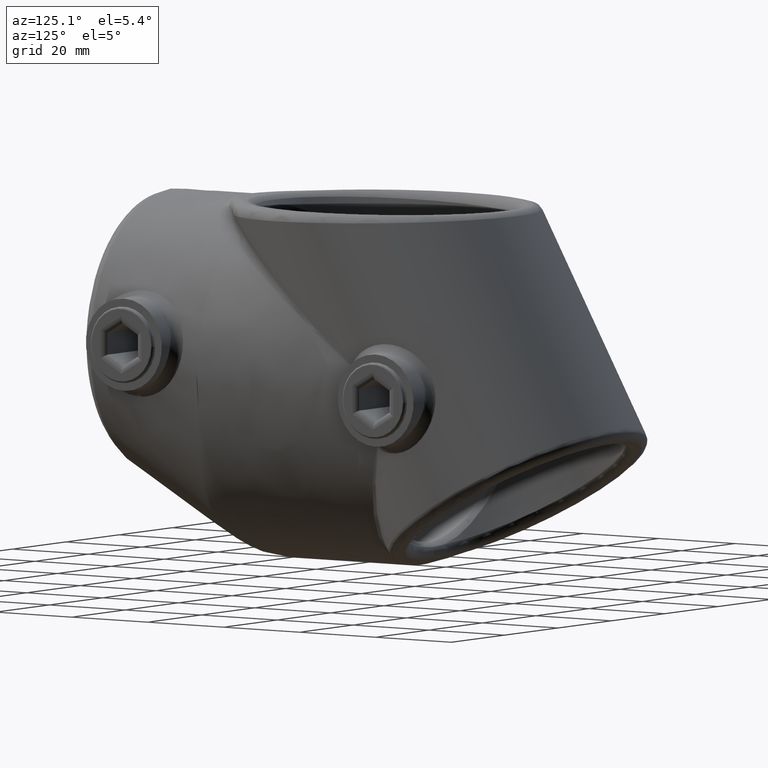
[diagram: clean part render]
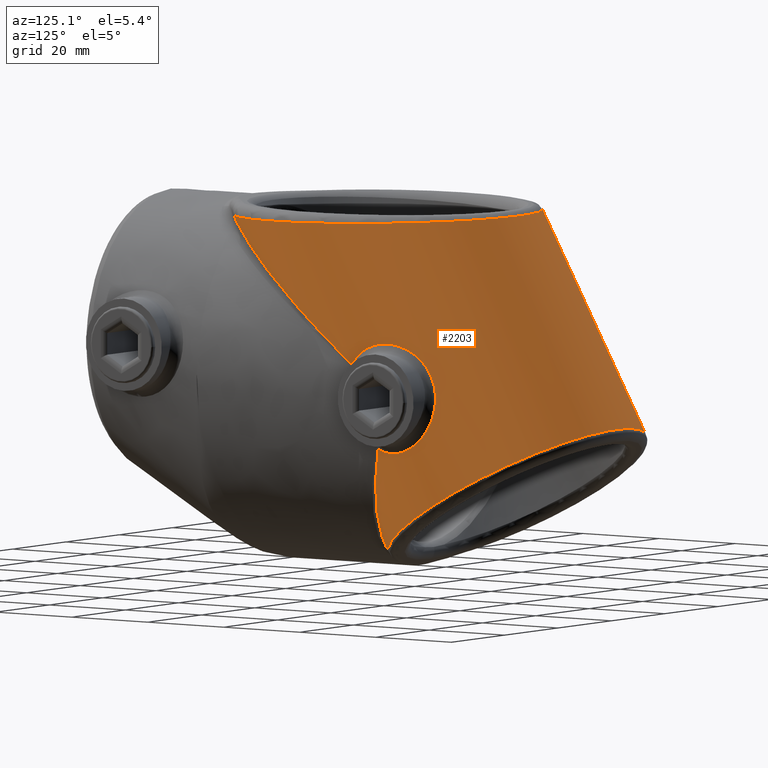
[diagram: same view with one face highlighted and labeled with its STEP entity id]
A machine part, auxiliary view. The second image highlights one B-rep face of the part: STEP entity #2203.
In plain terms, the highlighted cylindrical surface (partial cylindrical patch) has radius 30.5 mm, axis along (0, 0.5, -0.866).
Its self-contained STEP definition (entity closure, byte-faithful):
#7 = CARTESIAN_POINT ( 'NONE',  ( 18.44501776718502839, 32.91123728144165028, -5.520450272619874532 ) ) ;
#36 = CARTESIAN_POINT ( 'NONE',  ( -30.49999999999999645, 80.29829407782803230, -38.99999999999991473 ) ) ;
#47 = CARTESIAN_POINT ( 'NONE',  ( 30.44937329979589080, 75.96220431875330803, -27.81645599000276547 ) ) ;
#65 = CARTESIAN_POINT ( 'NONE',  ( -30.35150135555418416, 74.42045258168052158, -35.02951915703669528 ) ) ;
#152 = CARTESIAN_POINT ( 'NONE',  ( 28.36316154612272555, 90.61755760880986088, -34.44297344836920871 ) ) ;
#204 = CARTESIAN_POINT ( 'NONE',  ( 28.38834355044728497, 90.83418881274684509, -34.94510011564966590 ) ) ;
#236 = CARTESIAN_POINT ( 'NONE',  ( 30.28652875732203142, 89.13456637138995120, -47.02787276468654198 ) ) ;
#268 = CARTESIAN_POINT ( 'NONE',  ( 30.05519595197144156, 81.12434969222853454, -50.82119675898818656 ) ) ;
#350 = CARTESIAN_POINT ( 'NONE',  ( -17.35797571787684390, 70.33791826671986769, -71.91204675596125639 ) ) ;
#403 = CARTESIAN_POINT ( 'NONE',  ( 29.30642770102828010, 76.94835297041278466, -50.09545891354591163 ) ) ;
#445 = DIRECTION ( 'NONE',  ( 0.000000000000000000, 0.4999999999999949485, -0.8660254037844417052 ) ) ;
#476 = CARTESIAN_POINT ( 'NONE',  ( -28.78270576776624168, 76.26342488126442731, -52.36265940299310984 ) ) ;
#593 = ORIENTED_EDGE ( 'NONE', *, *, #1672, .F. ) ;
#598 = CARTESIAN_POINT ( 'NONE',  ( -29.68345301097895117, 77.50695399845572808, -48.24609858473048973 ) ) ;
#619 = CARTESIAN_POINT ( 'NONE',  ( -38.33271639267046993, 93.66956623462287723, -0.9973379543766888178 ) ) ;
#724 = CARTESIAN_POINT ( 'NONE',  ( 27.30618325833111726, 53.72964626366505314, -20.22254397919866520 ) ) ;
#760 = CARTESIAN_POINT ( 'NONE',  ( 30.33956844291328991, 77.24860475621959210, -27.44799046401220011 ) ) ;
#776 = EDGE_CURVE ( 'NONE', #3348, #6041, #4044, .T. ) ;
#833 = CARTESIAN_POINT ( 'NONE',  ( 0.000000000000000000, 93.01036297108150563, -61.01794919243113924 ) ) ;
#845 = CARTESIAN_POINT ( 'NONE',  ( 30.09323688456483126, 70.61333642481109507, -32.15432917841368976 ) ) ;
#860 = CARTESIAN_POINT ( 'NONE',  ( -30.46289620152457189, 77.35787832099934747, -37.01374970038066436 ) ) ;
#871 = CARTESIAN_POINT ( 'NONE',  ( 28.54021840678842281, 87.82131333787258143, -30.51379379222492716 ) ) ;
#897 = CARTESIAN_POINT ( 'NONE',  ( 29.97171781392411205, 80.58919490804505870, -50.81777132038101286 ) ) ;
#931 = CARTESIAN_POINT ( 'NONE',  ( 28.50107171371284664, 91.37873692949222004, -36.46799536167620204 ) ) ;
#991 = CARTESIAN_POINT ( 'NONE',  ( 28.34283345713108915, 89.85534098387887525, -33.02015240194587875 ) ) ;
#992 = EDGE_CURVE ( 'NONE', #3671, #1412, #9110, .T. ) ;
#1006 = AXIS2_PLACEMENT_3D ( 'NONE', #833, #1598, #2194 ) ;
#1069 = CARTESIAN_POINT ( 'NONE',  ( 17.86147621835334931, 70.47859743322435122, -71.44996175860433141 ) ) ;
#1078 = CARTESIAN_POINT ( 'NONE',  ( -20.38002325117111724, 71.27168710833788623, -68.84268208466407657 ) ) ;
#1175 = CARTESIAN_POINT ( 'NONE',  ( -20.12958676252430124, 35.80641273819524883, -7.776991746345832901 ) ) ;
#1188 = ORIENTED_EDGE ( 'NONE', *, *, #4663, .T. ) ;
#1197 = CARTESIAN_POINT ( 'NONE',  ( 18.75228484288420461, 70.74501861753161336, -70.57441860572518522 ) ) ;
#1265 = CARTESIAN_POINT ( 'NONE',  ( -26.21999983534173140, 74.11200527825812401, -59.47617310124038426 ) ) ;
#1289 = VERTEX_POINT ( 'NONE', #2967 ) ;
#1311 = CARTESIAN_POINT ( 'NONE',  ( -25.46712634632379846, 48.33713359090894812, -17.41024200543920486 ) ) ;
#1316 = CARTESIAN_POINT ( 'NONE',  ( -15.68382990263948784, 29.22626009812640646, -2.857655961650975129 ) ) ;
#1331 = CARTESIAN_POINT ( 'NONE',  ( -30.49872829845923050, 80.17077017296398367, -39.42248861245595037 ) ) ;
#1376 = CARTESIAN_POINT ( 'NONE',  ( 17.38736970977256391, 31.43046698510136494, -4.475478623989165960 ) ) ;
#1388 = CARTESIAN_POINT ( 'NONE',  ( 26.86529976190579205, 52.06718935760292055, -19.04796247303830015 ) ) ;
#1412 = VERTEX_POINT ( 'NONE', #7890 ) ;
#1482 = CARTESIAN_POINT ( 'NONE',  ( -30.49999999999999645, 79.56421410354572288, -38.50412911332108479 ) ) ;
#1515 = CARTESIAN_POINT ( 'NONE',  ( -30.26231343452380429, 72.95312297281871849, -34.03833827777643961 ) ) ;
#1545 = CARTESIAN_POINT ( 'NONE',  ( -30.44063504954216981, 76.62329110273878996, -36.51753617038097133 ) ) ;
#1555 = CARTESIAN_POINT ( 'NONE',  ( -24.35663476088555157, 45.54809617706074931, -15.52624774849091516 ) ) ;
#1598 = DIRECTION ( 'NONE',  ( 0.000000000000000000, -0.4999999999999999445, 0.8660254037844387076 ) ) ;
#1612 = CARTESIAN_POINT ( 'NONE',  ( 29.52600718785646450, 91.33772338493795928, -42.80684002581733694 ) ) ;
#1671 = CARTESIAN_POINT ( 'NONE',  ( 29.47214493404342406, 82.79931932904462144, -27.61255559974079077 ) ) ;
#1672 = EDGE_CURVE ( 'NONE', #3348, #1412, #7423, .T. ) ;
#1701 = CARTESIAN_POINT ( 'NONE',  ( 29.94580401127025837, 90.46186620999989714, -45.01950362783234993 ) ) ;
#1736 = CARTESIAN_POINT ( 'NONE',  ( 29.13215729479256311, 91.74969480579304104, -40.71527587087046385 ) ) ;
#1780 = CYLINDRICAL_SURFACE ( 'NONE', #9118, 30.50000000000000355 ) ;
#1796 = EDGE_CURVE ( 'NONE', #9166, #3671, #1890, .T. ) ;
#1804 = CARTESIAN_POINT ( 'NONE',  ( 17.39960012116047849, 70.34808754264753361, -71.87867596729040542 ) ) ;
#1812 = CARTESIAN_POINT ( 'NONE',  ( -17.67002634304123276, 31.77757793497867311, -4.726027649545121889 ) ) ;
#1838 = ORIENTED_EDGE ( 'NONE', *, *, #3448, .T. ) ;
#1846 = CARTESIAN_POINT ( 'NONE',  ( -25.86337808222719303, 73.87956597968209849, -60.24393097526907326 ) ) ;
#1855 = CARTESIAN_POINT ( 'NONE',  ( 13.96015541855962638, 69.52583518112130889, -74.57674763374765803 ) ) ;
#1869 = CARTESIAN_POINT ( 'NONE',  ( 26.76435440818125500, 74.48425429532015585, -58.24633968835950526 ) ) ;
#1890 = CIRCLE ( 'NONE', #1006, 30.50000000000000355 ) ;
#1916 = CARTESIAN_POINT ( 'NONE',  ( -19.35506942537865172, 34.44666004290193229, -6.737254138440141205 ) ) ;
#2017 = CARTESIAN_POINT ( 'NONE',  ( -30.49363435484371720, 80.04316863593908238, -39.84523333752272833 ) ) ;
#2064 = CARTESIAN_POINT ( 'NONE',  ( 15.57297064652125052, 29.15112972464211438, -2.859824788713234422 ) ) ;
#2194 = DIRECTION ( 'NONE',  ( 0.000000000000000000, -0.8660254037844385966, -0.4999999999999999445 ) ) ;
#2203 = ADVANCED_FACE ( 'NONE', ( #8113 ), #1780, .T. ) ;
#2239 = CARTESIAN_POINT ( 'NONE',  ( 30.31208047141105411, 77.51072113616112347, -27.39165121002950087 ) ) ;
#2323 = CARTESIAN_POINT ( 'NONE',  ( -28.52656788089715789, 59.80821397883641311, -25.15895468478221275 ) ) ;
#2337 = CARTESIAN_POINT ( 'NONE',  ( 30.42297891686403943, 72.52043502000009312, -29.89279806351966329 ) ) ;
#2362 = CARTESIAN_POINT ( 'NONE',  ( 30.50044371640136021, 86.48318662641833043, -49.28703573285194750 ) ) ;
#2390 = CARTESIAN_POINT ( 'NONE',  ( 28.74088606960821224, 86.59729661167303050, -29.48731181206745333 ) ) ;
#2415 = ORIENTED_EDGE ( 'NONE', *, *, #8711, .T. ) ;
#2417 = CARTESIAN_POINT ( 'NONE',  ( 29.98865679546280916, 90.33667662634337603, -45.25400101452830626 ) ) ;
#2451 = CARTESIAN_POINT ( 'NONE',  ( 30.48401572788551661, 87.16178965940852663, -48.84042653887541974 ) ) ;
#2478 = CARTESIAN_POINT ( 'NONE',  ( 30.42582677312302053, 84.29274656171540414, -50.30139804965060080 ) ) ;
#2498 = CARTESIAN_POINT ( 'NONE',  ( 29.30642770102828010, 76.94835297041278466, -50.09545891354591163 ) ) ;
#2527 = CARTESIAN_POINT ( 'NONE',  ( -15.36778974220624328, 69.82929699758260256, -73.58169082627144064 ) ) ;
#2553 = CARTESIAN_POINT ( 'NONE',  ( -16.73437100423792501, 30.47818541083012889, -3.766310445330428358 ) ) ;
#2584 = CARTESIAN_POINT ( 'NONE',  ( -19.24279805591194759, 70.88308611544971427, -70.12088760762082984 ) ) ;
#2597 =( BOUNDED_CURVE ( )  B_SPLINE_CURVE ( 3, ( #1316, #6340, #619, #7874, #2691, #3456, #2064 ),
 .UNSPECIFIED., .F., .T. ) 
 B_SPLINE_CURVE_WITH_KNOTS ( ( 4, 3, 4 ),
 ( 3.681695185236678824, 6.285301618690904313, 8.888908052145129801 ),
 .UNSPECIFIED. ) 
 CURVE ( )  GEOMETRIC_REPRESENTATION_ITEM ( )  RATIONAL_B_SPLINE_CURVE ( ( 1.000000000000000000, 0.5105072602869930032, 0.5105072602869930032, 1.000000000000000000, 0.5105072602869930032, 0.5105072602869930032, 1.000000000000000000 ) ) 
 REPRESENTATION_ITEM ( '' )  );
#2600 = CARTESIAN_POINT ( 'NONE',  ( 22.71758005338712394, 72.18097757299673844, -65.84881721183683112 ) ) ;
#2643 = CARTESIAN_POINT ( 'NONE',  ( -21.55264877279102365, 38.56051996048856978, -9.912676889921330670 ) ) ;
#2691 = CARTESIAN_POINT ( 'NONE',  ( 38.46181129849631475, 93.48497915451751794, -1.002666524396076619 ) ) ;
#2756 = CARTESIAN_POINT ( 'NONE',  ( 25.88246977969324192, 48.76742000996082282, -16.71678926424047518 ) ) ;
#2827 = CARTESIAN_POINT ( 'NONE',  ( 21.22715452843879902, 37.52061458488518753, -8.774042677501396881 ) ) ;
#2932 = CARTESIAN_POINT ( 'NONE',  ( 30.40301422667542752, 72.32264374670988616, -30.07466169681347523 ) ) ;
#2967 = CARTESIAN_POINT ( 'NONE',  ( 17.38736970977256391, 31.43046698510136494, -4.475478623989165960 ) ) ;
#3037 = CARTESIAN_POINT ( 'NONE',  ( -27.54908165488601313, 55.47092786665990616, -22.22911871861393607 ) ) ;
#3070 = CARTESIAN_POINT ( 'NONE',  ( 30.27319961671228654, 82.71738808873030280, -50.68630680510659658 ) ) ;
#3133 = CARTESIAN_POINT ( 'NONE',  ( 28.99379122742457682, 85.24347140404179868, -28.62266500859971785 ) ) ;
#3167 = CARTESIAN_POINT ( 'NONE',  ( 30.49895729134141575, 85.78230001468664057, -49.68673941487461576 ) ) ;
#3348 = VERTEX_POINT ( 'NONE', #1555 ) ;
#3373 = CARTESIAN_POINT ( 'NONE',  ( -18.94953508400699960, 33.77342324947960606, -6.226739656773689013 ) ) ;
#3441 = CARTESIAN_POINT ( 'NONE',  ( -29.82723400005104253, 77.75945600028293825, -47.40996937459798488 ) ) ;
#3448 = EDGE_CURVE ( 'NONE', #8643, #4346, #8715, .T. ) ;
#3456 = CARTESIAN_POINT ( 'NONE',  ( 48.58796385304238186, 51.41822974550195369, -2.217028979157452007 ) ) ;
#3471 = CARTESIAN_POINT ( 'NONE',  ( -30.50000000000000000, 80.23517075407224297, -39.20912851861188386 ) ) ;
#3503 = CARTESIAN_POINT ( 'NONE',  ( -30.48981433148532716, 79.97939751567948008, -40.05650693291051567 ) ) ;
#3557 = CARTESIAN_POINT ( 'NONE',  ( 22.02552870670259466, 39.09412703554190927, -9.884989882195339916 ) ) ;
#3621 = CARTESIAN_POINT ( 'NONE',  ( 19.42618815825797540, 34.42554841820717115, -6.589238457058853804 ) ) ;
#3658 = CARTESIAN_POINT ( 'NONE',  ( 30.32995300662033600, 71.75384269962594885, -30.65349088626774332 ) ) ;
#3671 = VERTEX_POINT ( 'NONE', #8227 ) ;
#3798 = CARTESIAN_POINT ( 'NONE',  ( 0.000000000000000000, 32.78163357943321188, 43.30127018922208748 ) ) ;
#3805 = CARTESIAN_POINT ( 'NONE',  ( 30.09492813926645738, 81.39107688247007388, -50.81321539851899871 ) ) ;
#3863 = CARTESIAN_POINT ( 'NONE',  ( 29.18000256002757098, 84.29026432823694392, -28.15217604061583145 ) ) ;
#3897 = CARTESIAN_POINT ( 'NONE',  ( 30.21782548737847307, 78.30911020251005539, -27.26140015290030405 ) ) ;
#4006 = CARTESIAN_POINT ( 'NONE',  ( -22.46261114388510194, 72.08952874576601744, -66.14966621136545655 ) ) ;
#4044 = B_SPLINE_CURVE_WITH_KNOTS ( 'NONE', 3,
 ( #6161, #4795, #9060, #4763, #2643, #6936, #1175, #1916, #3373, #1812, #2553, #8408 ),
 .UNSPECIFIED., .F., .F.,
 ( 4, 2, 2, 2, 2, 4 ),
 ( 6.518499014193634811E-17, 0.005633497349932876409, 0.01126699469986568863, 0.01408374337483209518, 0.01690049204979850173, 0.02253398939973130788 ),
 .UNSPECIFIED. ) ;
#4125 = CARTESIAN_POINT ( 'NONE',  ( -30.47454146391283203, 79.78817250290880736, -40.69003177538704108 ) ) ;
#4156 = CARTESIAN_POINT ( 'NONE',  ( -30.39825058246632139, 79.27905961390675316, -42.37666991115857940 ) ) ;
#4224 = CARTESIAN_POINT ( 'NONE',  ( -29.19159717093920392, 76.75631958986956249, -50.73132076627071285 ) ) ;
#4346 = VERTEX_POINT ( 'NONE', #2498 ) ;
#4350 = CARTESIAN_POINT ( 'NONE',  ( 30.49264478895953800, 73.56493428521207534, -29.05561863693290192 ) ) ;
#4388 = CARTESIAN_POINT ( 'NONE',  ( 30.49511147472356143, 74.96801633239823559, -28.23714589185688340 ) ) ;
#4414 = CARTESIAN_POINT ( 'NONE',  ( 30.25129058228491630, 78.04039628169961418, -27.29839527217823303 ) ) ;
#4462 = CARTESIAN_POINT ( 'NONE',  ( -27.89860158563536530, 56.91433319075659369, -23.20413874794152420 ) ) ;
#4499 = CARTESIAN_POINT ( 'NONE',  ( 29.30642770102828010, 76.94835297041278466, -50.09545891354591163 ) ) ;
#4528 = CARTESIAN_POINT ( 'NONE',  ( 30.07098713400067069, 90.06813912370266451, -45.71576740894198565 ) ) ;
#4557 = CARTESIAN_POINT ( 'NONE',  ( 28.37398162251393785, 89.25141844450482154, -32.13147965212733226 ) ) ;
#4585 = CARTESIAN_POINT ( 'NONE',  ( 29.57120417598478213, 82.28383173494837877, -27.47674311221301835 ) ) ;
#4618 = CARTESIAN_POINT ( 'NONE',  ( 30.20732299119071484, 82.18881131902783466, -50.76021627140008263 ) ) ;
#4663 = EDGE_CURVE ( 'NONE', #7161, #1289, #6494, .T. ) ;
#4669 = CARTESIAN_POINT ( 'NONE',  ( -15.68382990263948784, 29.22626009812640646, -2.857655961650975129 ) ) ;
#4736 = CARTESIAN_POINT ( 'NONE',  ( -24.69424997043291725, 73.19049115658251026, -62.51880732091395743 ) ) ;
#4763 = CARTESIAN_POINT ( 'NONE',  ( -22.18565720178851564, 39.94875887457428121, -11.00794917473809598 ) ) ;
#4795 = CARTESIAN_POINT ( 'NONE',  ( -23.87214981268276759, 44.14085164857510080, -14.37444043652144110 ) ) ;
#4846 = CARTESIAN_POINT ( 'NONE',  ( 26.27864410232941950, 74.14447842031580649, -59.36900588771138132 ) ) ;
#4853 = CARTESIAN_POINT ( 'NONE',  ( -30.17444435954257642, 78.51788007157961147, -44.89812456122756146 ) ) ;
#4907 = CARTESIAN_POINT ( 'NONE',  ( 14.99387977444243703, 69.73826782928324519, -73.88036791546484494 ) ) ;
#4948 = CARTESIAN_POINT ( 'NONE',  ( -27.79746652342264568, 75.29308306344096025, -55.57262428861405112 ) ) ;
#4992 = EDGE_LOOP ( 'NONE', ( #6393, #7305, #1188, #2415, #1838, #6145, #8530, #5015, #593 ) ) ;
#5015 = ORIENTED_EDGE ( 'NONE', *, *, #992, .T. ) ;
#5073 = CARTESIAN_POINT ( 'NONE',  ( 30.17208843850504607, 70.90219447025006616, -31.69871553682104093 ) ) ;
#5102 = CARTESIAN_POINT ( 'NONE',  ( 30.41281642001786523, 76.47033151206228752, -27.64598311191765845 ) ) ;
#5148 = CARTESIAN_POINT ( 'NONE',  ( -30.49257895087590242, 78.82766567686465464, -38.00659078728637752 ) ) ;
#5211 = CARTESIAN_POINT ( 'NONE',  ( 28.48655027564037923, 88.20161304633549548, -30.89171758286723701 ) ) ;
#5240 = CARTESIAN_POINT ( 'NONE',  ( 29.50329547692740562, 77.95257903322736581, -50.46908574028934424 ) ) ;
#5274 = CARTESIAN_POINT ( 'NONE',  ( 28.62513798074591875, 91.60859840613994720, -37.51074561825765841 ) ) ;
#5297 = CARTESIAN_POINT ( 'NONE',  ( 29.86133825540624542, 80.70683911640179531, -27.17835365256469871 ) ) ;
#5401 = CARTESIAN_POINT ( 'NONE',  ( 24.30246227373551093, 72.98317859452207301, -63.20280055555905818 ) ) ;
#5408 = CARTESIAN_POINT ( 'NONE',  ( -17.67875855868492252, 70.42767354646954914, -71.61722625486834204 ) ) ;
#5437 = CARTESIAN_POINT ( 'NONE',  ( -14.67493795496997855, 69.67272457789835016, -74.09522656045038502 ) ) ;
#5519 = CARTESIAN_POINT ( 'NONE',  ( 24.60839638535630058, 73.14635853193098569, -62.66439042433803763 ) ) ;
#5556 = CARTESIAN_POINT ( 'NONE',  ( 13.96015541855962638, 69.52583518112130889, -74.57674763374765803 ) ) ;
#5593 = CARTESIAN_POINT ( 'NONE',  ( 17.38736970977256391, 31.43046698510136494, -4.475478623989165960 ) ) ;
#5613 = EDGE_CURVE ( 'NONE', #6041, #7161, #2597, .T. ) ;
#5712 = CARTESIAN_POINT ( 'NONE',  ( 16.81632690761492199, 30.65383492047839908, -3.922772057109465305 ) ) ;
#5725 = CARTESIAN_POINT ( 'NONE',  ( 25.34060656534270706, 47.13008675325445296, -15.56018287641590980 ) ) ;
#5753 = CARTESIAN_POINT ( 'NONE',  ( -24.35663476088555157, 45.54809617706074931, -15.52624774849091516 ) ) ;
#5799 = CARTESIAN_POINT ( 'NONE',  ( 30.24191841760068300, 71.22306521138607138, -31.26639807174329988 ) ) ;
#5823 = CARTESIAN_POINT ( 'NONE',  ( -29.54273364429298354, 65.62543226998725743, -29.08848456398923688 ) ) ;
#5882 = CARTESIAN_POINT ( 'NONE',  ( -26.38864016033674176, 51.17004902978380443, -19.32387586017367553 ) ) ;
#5952 = CARTESIAN_POINT ( 'NONE',  ( 28.34059428077366150, 90.12867103328349572, -33.48238687830915694 ) ) ;
#6010 = CARTESIAN_POINT ( 'NONE',  ( 29.81318732384266923, 90.81121676663022413, -44.30542277840201848 ) ) ;
#6041 = VERTEX_POINT ( 'NONE', #4669 ) ;
#6042 = CARTESIAN_POINT ( 'NONE',  ( 28.40305956535761567, 88.91942368465365121, -31.70346132274606177 ) ) ;
#6078 = CARTESIAN_POINT ( 'NONE',  ( 29.27671621762839749, 83.80165764272101114, -27.95009684843164166 ) ) ;
#6145 = ORIENTED_EDGE ( 'NONE', *, *, #8267, .T. ) ;
#6151 = CARTESIAN_POINT ( 'NONE',  ( 25.19515466275147730, 73.47607890062720060, -61.57615372125527387 ) ) ;
#6161 = CARTESIAN_POINT ( 'NONE',  ( -24.35663476088555157, 45.54809617706074931, -15.52624774849091516 ) ) ;
#6190 = CARTESIAN_POINT ( 'NONE',  ( -25.10123617667413143, 73.41917319009442622, -61.76404679502841333 ) ) ;
#6213 = CARTESIAN_POINT ( 'NONE',  ( 28.08350763516054371, 75.51733822592630929, -54.83133655912767779 ) ) ;
#6263 = DIRECTION ( 'NONE',  ( 0.000000000000000000, 0.8660254037844414832, 0.4999999999999949485 ) ) ;
#6293 = CARTESIAN_POINT ( 'NONE',  ( -27.22120853508139504, 74.81562739422584229, -57.15127873961059635 ) ) ;
#6322 = CARTESIAN_POINT ( 'NONE',  ( -30.49999999999999645, 80.29829407782803230, -38.99999999999991473 ) ) ;
#6340 = CARTESIAN_POINT ( 'NONE',  ( -48.61554589751776234, 51.65187285237805526, -2.210284283624990742 ) ) ;
#6351 = CARTESIAN_POINT ( 'NONE',  ( -30.45927678148718698, 79.66080693555009873, -41.11198715305771145 ) ) ;
#6363 = CARTESIAN_POINT ( 'NONE',  ( 15.57297064652125052, 29.15112972464211438, -2.859824788713234422 ) ) ;
#6367 = CARTESIAN_POINT ( 'NONE',  ( 28.44635212465061969, 58.76112312595058995, -23.77782247591627396 ) ) ;
#6393 = ORIENTED_EDGE ( 'NONE', *, *, #776, .T. ) ;
#6418 = CARTESIAN_POINT ( 'NONE',  ( -30.07259554193779749, 78.26476598553945507, -45.73648888156817094 ) ) ;
#6466 = CARTESIAN_POINT ( 'NONE',  ( 28.09693448163039520, 57.07721251798319884, -22.58789739354976689 ) ) ;
#6494 = B_SPLINE_CURVE_WITH_KNOTS ( 'NONE', 3,
 ( #9268, #7865, #5712, #1376 ),
 .UNSPECIFIED., .F., .F.,
 ( 4, 4 ),
 ( 0.06114825250137626705, 0.06446633607446242142 ),
 .UNSPECIFIED. ) ;
#6639 = CARTESIAN_POINT ( 'NONE',  ( -28.80526819755081291, 61.25948906883333933, -26.13929073951940296 ) ) ;
#6651 = CARTESIAN_POINT ( 'NONE',  ( 30.35655308551538667, 71.93959343158044817, -30.45468415257307271 ) ) ;
#6678 = CARTESIAN_POINT ( 'NONE',  ( 30.49738423662510556, 86.71240401335285242, -49.14451480775397840 ) ) ;
#6734 = CARTESIAN_POINT ( 'NONE',  ( 28.66738206062850480, 87.01915534698029830, -29.81158981358772309 ) ) ;
#6766 = CARTESIAN_POINT ( 'NONE',  ( 30.43250165715370059, 88.01677612320332855, -48.17387541998846956 ) ) ;
#6784 = B_SPLINE_CURVE_WITH_KNOTS ( 'NONE', 3,
 ( #403, #7596, #6213, #1869, #4846, #6927, #6151, #5519, #5401, #2600, #7656, #9121, #1197, #1069, #1804, #6868, #4907, #5556 ),
 .UNSPECIFIED., .F., .F.,
 ( 4, 2, 2, 2, 2, 2, 2, 2, 4 ),
 ( 7.757919228897728493E-18, 0.007607154667013487498, 0.01141073200052022604, 0.01331252066727358838, 0.01521430933402695071, 0.02282146400104028555, 0.02472325266779364095, 0.02662504133454699287, 0.03042861866805371754 ),
 .UNSPECIFIED. ) ;
#6795 = CARTESIAN_POINT ( 'NONE',  ( 30.22224771060976067, 89.46810890614096934, -46.61046793097037977 ) ) ;
#6850 = CARTESIAN_POINT ( 'NONE',  ( -13.96015541854487374, 69.52583518111828198, -74.57674763375761984 ) ) ;
#6868 = CARTESIAN_POINT ( 'NONE',  ( 15.98182323906639013, 69.97091308470747606, -73.11715665688490162 ) ) ;
#6927 = CARTESIAN_POINT ( 'NONE',  ( 25.47538437581468784, 73.64224752848605249, -61.02755501561955498 ) ) ;
#6936 = CARTESIAN_POINT ( 'NONE',  ( -20.49887060219086266, 36.49363854863000256, -8.306775574351362934 ) ) ;
#7086 = CARTESIAN_POINT ( 'NONE',  ( 29.36420020278216114, 63.81947866826394034, -27.35249412319866380 ) ) ;
#7144 = CARTESIAN_POINT ( 'NONE',  ( 19.89324812049067148, 35.19429181386900041, -7.131859194412445646 ) ) ;
#7161 = VERTEX_POINT ( 'NONE', #6363 ) ;
#7305 = ORIENTED_EDGE ( 'NONE', *, *, #5613, .T. ) ;
#7395 = CARTESIAN_POINT ( 'NONE',  ( 30.38249476347720091, 83.76819599396314686, -50.45772643277563674 ) ) ;
#7422 = CARTESIAN_POINT ( 'NONE',  ( 30.47364442475049273, 87.38222530564206636, -48.67849483449794690 ) ) ;
#7423 = B_SPLINE_CURVE_WITH_KNOTS ( 'NONE', 3,
 ( #5753, #1311, #5882, #3037, #4462, #2323, #6639, #5823, #8051, #1515, #65, #1545, #860, #5148, #1482, #36 ),
 .UNSPECIFIED., .F., .F.,
 ( 4, 2, 2, 2, 2, 2, 2, 4 ),
 ( 0.02104258630725084830, 0.03167299697661555419, 0.03698820231129790193, 0.04230340764598025660, 0.05293381831534495208, 0.05824902365002730675, 0.06090662631736847021, 0.06356422898470963367 ),
 .UNSPECIFIED. ) ;
#7452 = CARTESIAN_POINT ( 'NONE',  ( 28.94399407809588354, 91.79600650359328995, -39.65557728330458787 ) ) ;
#7492 = CARTESIAN_POINT ( 'NONE',  ( 30.03941949399886724, 79.64757095947746279, -27.12754898691489203 ) ) ;
#7515 = B_SPLINE_CURVE_WITH_KNOTS ( 'NONE', 3,
 ( #5593, #7935, #7, #3621, #7144, #2827, #3557, #7904, #8589, #5725, #2756, #1388, #724, #6466, #6367, #7086, #7811, #7966 ),
 .UNSPECIFIED., .F., .F.,
 ( 4, 2, 2, 2, 2, 2, 2, 2, 4 ),
 ( 0.000000000000000000, 0.003145692796558304839, 0.006291385593116609679, 0.01258277118623321415, 0.01887415677934981689, 0.02516554237246642137, 0.03145692796558302584, 0.03774831355869963379, 0.05033108474493285661 ),
 .UNSPECIFIED. ) ;
#7577 = CARTESIAN_POINT ( 'NONE',  ( -16.37582440668359496, 70.07791202148509058, -72.76576678264753184 ) ) ;
#7596 = CARTESIAN_POINT ( 'NONE',  ( 28.78013853792780097, 76.22428154008164825, -52.49239074382357018 ) ) ;
#7656 = CARTESIAN_POINT ( 'NONE',  ( 21.26736208077199919, 71.57774251085317019, -67.83579783150337050 ) ) ;
#7811 = CARTESIAN_POINT ( 'NONE',  ( 29.80531481139117034, 67.20874271413882184, -29.74792688814032005 ) ) ;
#7821 = CARTESIAN_POINT ( 'NONE',  ( 30.09323688456483126, 70.61333642481109507, -32.15432917841368976 ) ) ;
#7824 = CARTESIAN_POINT ( 'NONE',  ( -30.33727242549788627, 79.02502687727141506, -43.21821511963212714 ) ) ;
#7865 = CARTESIAN_POINT ( 'NONE',  ( 16.21236171925707126, 29.89115766373698335, -3.382212398892492811 ) ) ;
#7874 = CARTESIAN_POINT ( 'NONE',  ( 0.06454745291292952880, 93.57727269457019759, -1.000002239386382774 ) ) ;
#7890 = CARTESIAN_POINT ( 'NONE',  ( -30.49999999999999645, 80.29829407782803230, -38.99999999999991473 ) ) ;
#7904 = CARTESIAN_POINT ( 'NONE',  ( 23.48239360968773326, 42.27595815188157502, -12.13177980336153539 ) ) ;
#7935 = CARTESIAN_POINT ( 'NONE',  ( 17.93036838203936156, 32.16463426893214717, -4.993552027684200034 ) ) ;
#7966 = CARTESIAN_POINT ( 'NONE',  ( 30.09323688456483126, 70.61333642481109507, -32.15432917841368976 ) ) ;
#7972 = CARTESIAN_POINT ( 'NONE',  ( 30.50397351579447403, 74.48028216852706862, -28.48937735863638210 ) ) ;
#8051 = CARTESIAN_POINT ( 'NONE',  ( -29.90351309651040879, 68.55490249799521507, -31.06734116091561404 ) ) ;
#8091 = CARTESIAN_POINT ( 'NONE',  ( 30.47281741283743628, 73.13235436706973758, -29.37129490730364978 ) ) ;
#8113 = FACE_OUTER_BOUND ( 'NONE', #4992, .T. ) ;
#8125 = CARTESIAN_POINT ( 'NONE',  ( 29.92779950406866263, 80.31978592123145688, -50.80625061041333623 ) ) ;
#8179 = CARTESIAN_POINT ( 'NONE',  ( 30.39164848708444566, 88.40889437457015276, -47.80957206950429850 ) ) ;
#8206 = CARTESIAN_POINT ( 'NONE',  ( 30.48375350885563861, 85.29746331654743585, -49.91620143609163307 ) ) ;
#8227 = CARTESIAN_POINT ( 'NONE',  ( -13.96015541854487374, 69.52583518111828198, -74.57674763375761984 ) ) ;
#8267 = EDGE_CURVE ( 'NONE', #4346, #9166, #6784, .T. ) ;
#8288 = CARTESIAN_POINT ( 'NONE',  ( -16.70662108933683143, 70.16307990668084926, -72.48617747335977413 ) ) ;
#8408 = CARTESIAN_POINT ( 'NONE',  ( -15.68382990263948784, 29.22626009812640646, -2.857655961650975129 ) ) ;
#8530 = ORIENTED_EDGE ( 'NONE', *, *, #1796, .T. ) ;
#8589 = CARTESIAN_POINT ( 'NONE',  ( 24.14048269836063554, 43.88437727546998701, -13.26769326176462549 ) ) ;
#8643 = VERTEX_POINT ( 'NONE', #7821 ) ;
#8711 = EDGE_CURVE ( 'NONE', #1289, #8643, #7515, .T. ) ;
#8715 = B_SPLINE_CURVE_WITH_KNOTS ( 'NONE', 3,
 ( #845, #5073, #5799, #3658, #6651, #2932, #2337, #8091, #4350, #7972, #4388, #47, #5102, #760, #2239, #4414, #3897, #7492, #5297, #4585, #1671, #6078, #3863, #3133, #8852, #2390, #6734, #871, #5211, #6042, #4557, #991, #5952, #152, #204, #931, #5274, #7452, #1736, #8883, #1612, #8797, #6010, #1701, #2417, #4528, #8917, #6795, #236, #8179, #6766, #7422, #2451, #6678, #2362, #3167, #8206, #2478, #7395, #3070, #4618, #3805, #268, #897, #8125, #8824, #5240, #4499 ),
 .UNSPECIFIED., .F., .F.,
 ( 4, 2, 2, 2, 2, 2, 2, 2, 2, 2, 2, 2, 2, 2, 2, 2, 2, 2, 2, 2, 2, 2, 2, 2, 2, 2, 2, 2, 2, 2, 2, 2, 2, 4 ),
 ( 0.000000000000000000, 0.001628367103303875792, 0.002442550654955817808, 0.003256734206607759391, 0.004885101309911636484, 0.006513468413215511843, 0.008141835516519388069, 0.008956019068171306233, 0.009770202619823222662, 0.01302693682643089011, 0.01465530392973472644, 0.01628367103303856103, 0.01791203813634239736, 0.01954040523964623022, 0.02116877234295006655, 0.02279713944625389593, 0.02442550654955771838, 0.02605387365286154777, 0.02931060785946924124, 0.03256734206607692778, 0.03419570916938076410, 0.03582407627268460737, 0.03663825982433654288, 0.03745244337598848533, 0.03908081047929233554, 0.04070917758259618574, 0.04152336113424811431, 0.04233754468590004288, 0.04396591178920392778, 0.04559427889250781962, 0.04722264599581170452, 0.04803682954746366779, 0.04885101309911563799, 0.05210774730572350494 ),
 .UNSPECIFIED. ) ;
#8797 = CARTESIAN_POINT ( 'NONE',  ( 29.71936603049945091, 91.00929197064770904, -43.81530775246283582 ) ) ;
#8824 = CARTESIAN_POINT ( 'NONE',  ( 29.70250296081522734, 78.98571155868972937, -50.70110398736821367 ) ) ;
#8852 = CARTESIAN_POINT ( 'NONE',  ( 28.90383180496646176, 85.71069871947054253, -28.89323008165243678 ) ) ;
#8883 = CARTESIAN_POINT ( 'NONE',  ( 29.42578350618621386, 91.46843084739695939, -42.28482289457815568 ) ) ;
#8917 = CARTESIAN_POINT ( 'NONE',  ( 30.11061247500186511, 89.92417036889676751, -45.94392503932616734 ) ) ;
#9029 = CARTESIAN_POINT ( 'NONE',  ( -23.40763944077162151, 72.51884328080502939, -64.73461869893905885 ) ) ;
#9060 = CARTESIAN_POINT ( 'NONE',  ( -23.34550880942690299, 42.73889760722563125, -13.23881027416312683 ) ) ;
#9110 = B_SPLINE_CURVE_WITH_KNOTS ( 'NONE', 3,
 ( #6850, #5437, #2527, #7577, #8288, #350, #5408, #2584, #1078, #4006, #9029, #4736, #6190, #1846, #1265, #6293, #4948, #476, #4224, #598, #3441, #6418, #4853, #7824, #4156, #6351, #4125, #3503, #2017, #1331, #3471, #6322 ),
 .UNSPECIFIED., .F., .F.,
 ( 4, 2, 2, 2, 2, 2, 2, 2, 2, 2, 2, 2, 2, 2, 2, 4 ),
 ( 0.006086105497135018555, 0.008707474731870296775, 0.01001815934923793242, 0.01132884396660556806, 0.01657158243607607939, 0.02181432090554659073, 0.02443569014028185854, 0.02705705937501713329, 0.03229979784448765157, 0.03754253631395818025, 0.04016390554869345153, 0.04278527478342870893, 0.04540664401816398021, 0.04671732863553161585, 0.04737267094421544755, 0.04802801325289927925 ),
 .UNSPECIFIED. ) ;
#9118 = AXIS2_PLACEMENT_3D ( 'NONE', #3798, #445, #6263 ) ;
#9121 = CARTESIAN_POINT ( 'NONE',  ( 19.18293518276422915, 70.88136945916018306, -70.12614688836150378 ) ) ;
#9166 = VERTEX_POINT ( 'NONE', #1855 ) ;
#9268 = CARTESIAN_POINT ( 'NONE',  ( 15.57297064652125052, 29.15112972464211438, -2.859824788713234422 ) ) ;